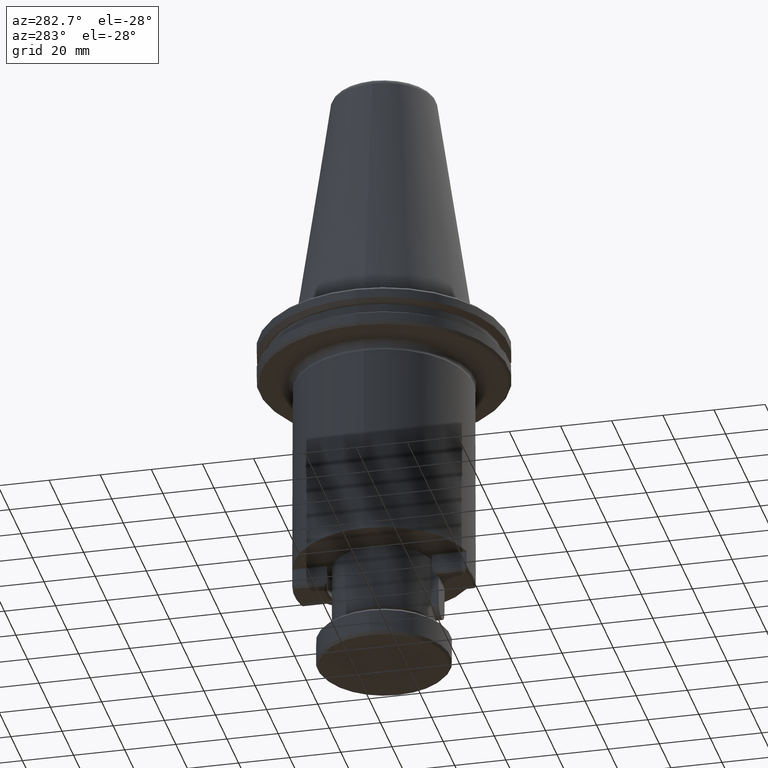
[diagram: clean part render]
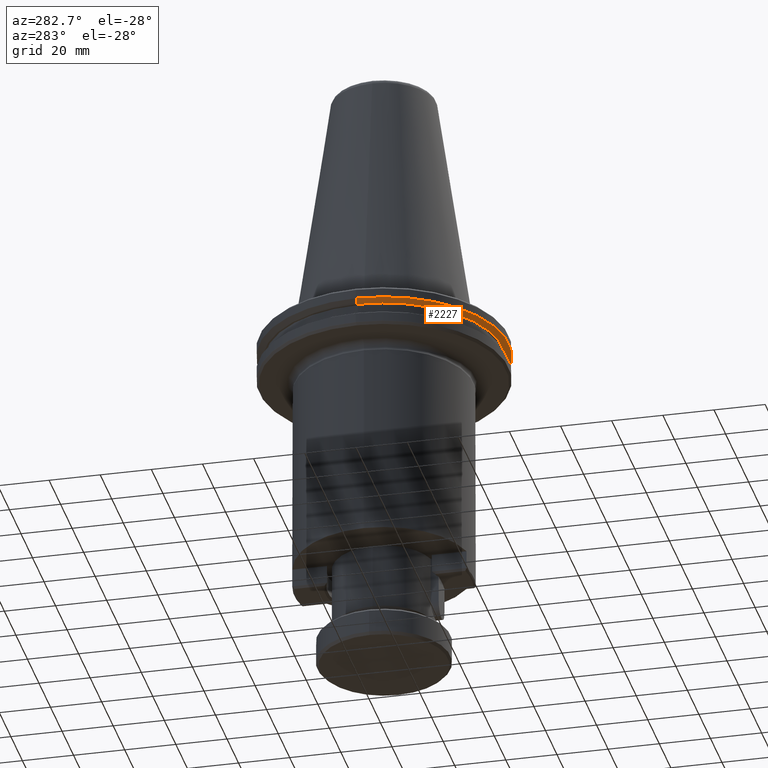
[diagram: same view with one face highlighted and labeled with its STEP entity id]
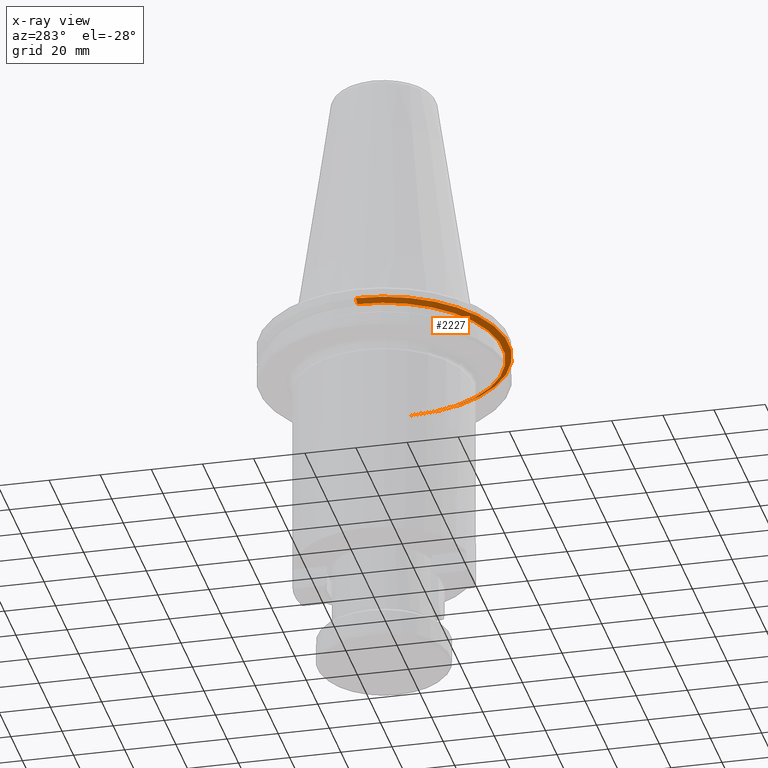
[diagram: x-ray of the same camera — body ghosted, the highlighted face saturated]
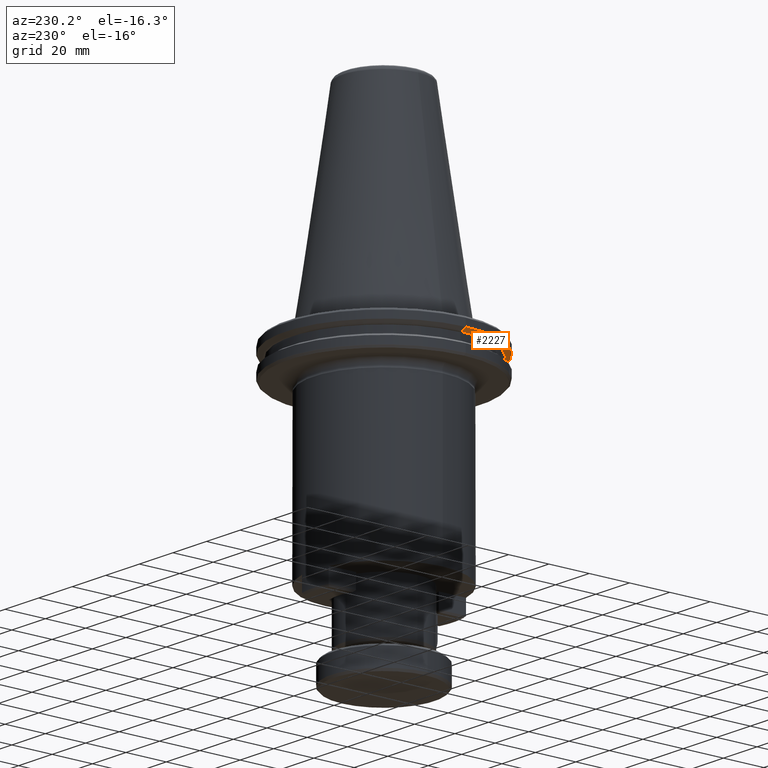
[diagram: same view with one face highlighted and labeled with its STEP entity id]
A machine part, auxiliary view. The second image highlights one B-rep face of the part: STEP entity #2227.
The next image is the same camera in x-ray: the body ghosted, the highlighted face saturated — about 2% of this face is hidden behind the body in this view.
A second angle (auxiliary view) of the same face is appended — the face is thin or edge-on in the first view.
In plain terms, the highlighted conical surface has half-angle 60 deg.
Its self-contained STEP definition (entity closure, byte-faithful):
#16 = CARTESIAN_POINT ( 'NONE',  ( 75.78031733994605200, 190.0907862128020700, 214.5752788091370500 ) ) ;
#21 = LINE ( 'NONE', #1968, #1224 ) ;
#286 = DIRECTION ( 'NONE',  ( -0.0000000000000000000, -0.0000000000000000000, -1.000000000000000000 ) ) ;
#338 = ORIENTED_EDGE ( 'NONE', *, *, #2848, .F. ) ;
#398 = CARTESIAN_POINT ( 'NONE',  ( 168.5255078679458900, 190.0907862128020700, 214.5752788091370500 ) ) ;
#581 = DIRECTION ( 'NONE',  ( 0.8660254038464200200, 0.0000000000000000000, 0.4999999998926451000 ) ) ;
#754 = DIRECTION ( 'NONE',  ( 0.0000000000000000000, 0.0000000000000000000, 1.000000000000000000 ) ) ;
#787 = EDGE_CURVE ( 'NONE', #1590, #2667, #2900, .T. ) ;
#801 = ORIENTED_EDGE ( 'NONE', *, *, #1975, .T. ) ;
#980 = FACE_OUTER_BOUND ( 'NONE', #1621, .T. ) ;
#1137 = DIRECTION ( 'NONE',  ( -0.0000000000000000000, -0.0000000000000000000, -1.000000000000000000 ) ) ;
#1211 = CARTESIAN_POINT ( 'NONE',  ( 170.9029126039458800, 190.0907862128020700, 215.9478740730463900 ) ) ;
#1220 = CARTESIAN_POINT ( 'NONE',  ( 122.1529126039459800, 190.0907862128020700, 215.9478740730463900 ) ) ;
#1224 = VECTOR ( 'NONE', #581, 1000.000000000000000 ) ;
#1289 = VECTOR ( 'NONE', #1824, 1000.000000000000000 ) ;
#1398 = CARTESIAN_POINT ( 'NONE',  ( 73.40291260394607800, 190.0907862128020700, 215.9478740730463900 ) ) ;
#1425 = AXIS2_PLACEMENT_3D ( 'NONE', #2537, #1137, #2765 ) ;
#1525 = ORIENTED_EDGE ( 'NONE', *, *, #2304, .T. ) ;
#1590 = VERTEX_POINT ( 'NONE', #398 ) ;
#1621 = EDGE_LOOP ( 'NONE', ( #338, #1902, #1525, #801 ) ) ;
#1669 = CARTESIAN_POINT ( 'NONE',  ( 122.1529126039459800, 190.0907862128020700, 215.9478740730463900 ) ) ;
#1824 = DIRECTION ( 'NONE',  ( -0.8660254038464200200, 1.060575238800812200E-016, 0.4999999998926451000 ) ) ;
#1898 = DIRECTION ( 'NONE',  ( -1.000000000000000000, 0.0000000000000000000, 0.0000000000000000000 ) ) ;
#1902 = ORIENTED_EDGE ( 'NONE', *, *, #787, .F. ) ;
#1920 = CIRCLE ( 'NONE', #2070, 48.74999999999990800 ) ;
#1968 = CARTESIAN_POINT ( 'NONE',  ( 170.9029126039458800, 190.0907862128020700, 215.9478740730463900 ) ) ;
#1975 = EDGE_CURVE ( 'NONE', #2186, #2706, #1920, .T. ) ;
#2007 = AXIS2_PLACEMENT_3D ( 'NONE', #1220, #754, #2388 ) ;
#2070 = AXIS2_PLACEMENT_3D ( 'NONE', #1669, #286, #1898 ) ;
#2186 = VERTEX_POINT ( 'NONE', #1211 ) ;
#2227 = ADVANCED_FACE ( 'NONE', ( #980 ), #2623, .T. ) ;
#2304 = EDGE_CURVE ( 'NONE', #1590, #2186, #21, .T. ) ;
#2388 = DIRECTION ( 'NONE',  ( 1.000000000000000000, 0.0000000000000000000, 0.0000000000000000000 ) ) ;
#2537 = CARTESIAN_POINT ( 'NONE',  ( 122.1529126039459800, 190.0907862128020700, 214.5752788091370500 ) ) ;
#2552 = LINE ( 'NONE', #2748, #1289 ) ;
#2623 = CONICAL_SURFACE ( 'NONE', #2007, 48.74999999999990800, 1.047197551320560500 ) ;
#2667 = VERTEX_POINT ( 'NONE', #16 ) ;
#2706 = VERTEX_POINT ( 'NONE', #1398 ) ;
#2748 = CARTESIAN_POINT ( 'NONE',  ( 73.40291260394607800, 190.0907862128020700, 215.9478740730463900 ) ) ;
#2765 = DIRECTION ( 'NONE',  ( -1.000000000000000000, 0.0000000000000000000, 0.0000000000000000000 ) ) ;
#2848 = EDGE_CURVE ( 'NONE', #2667, #2706, #2552, .T. ) ;
#2900 = CIRCLE ( 'NONE', #1425, 46.37259526399991900 ) ;